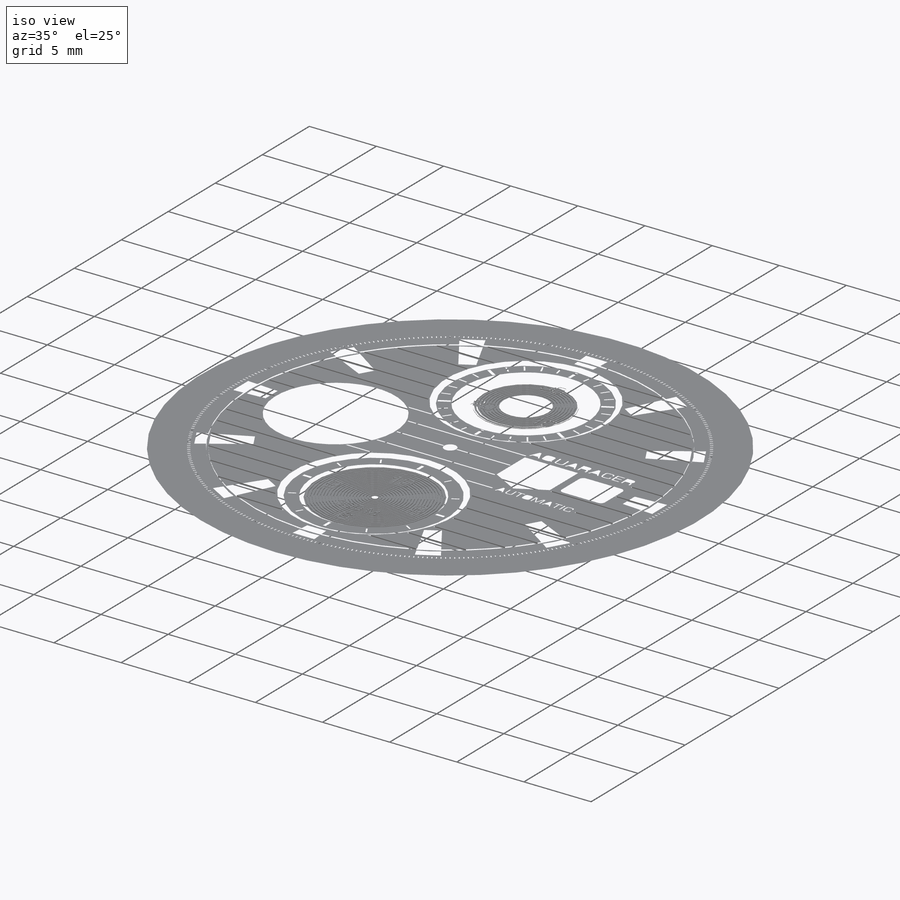
[diagram: iso view]
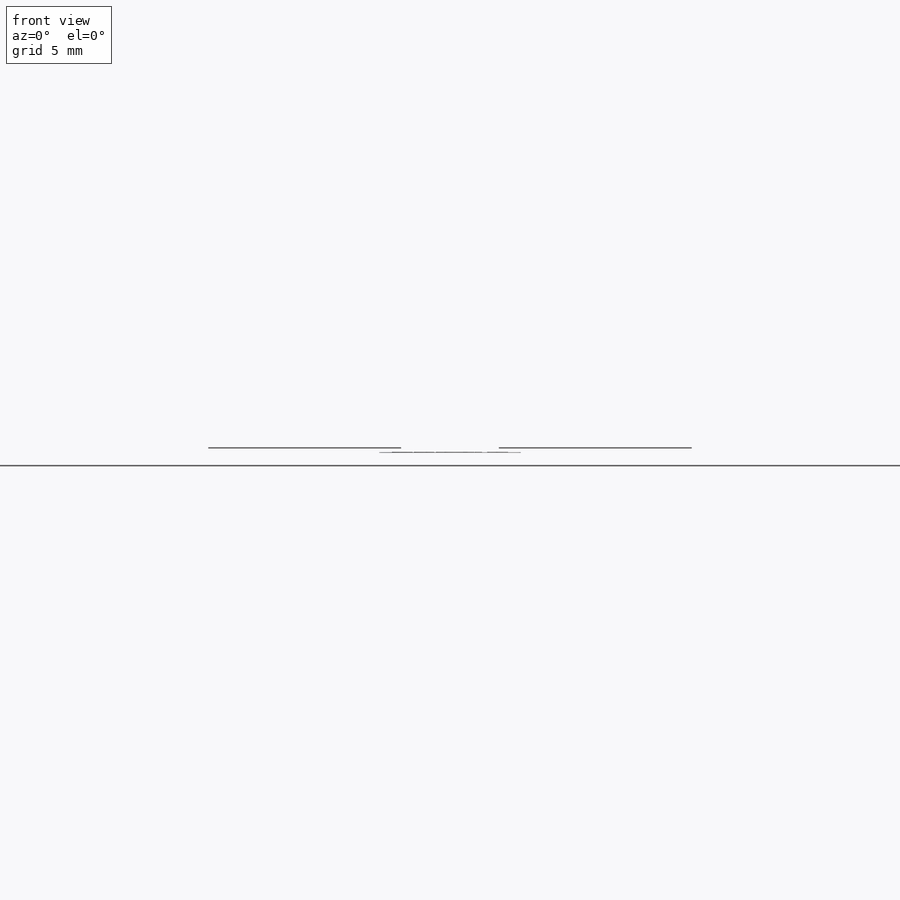
[diagram: front view]
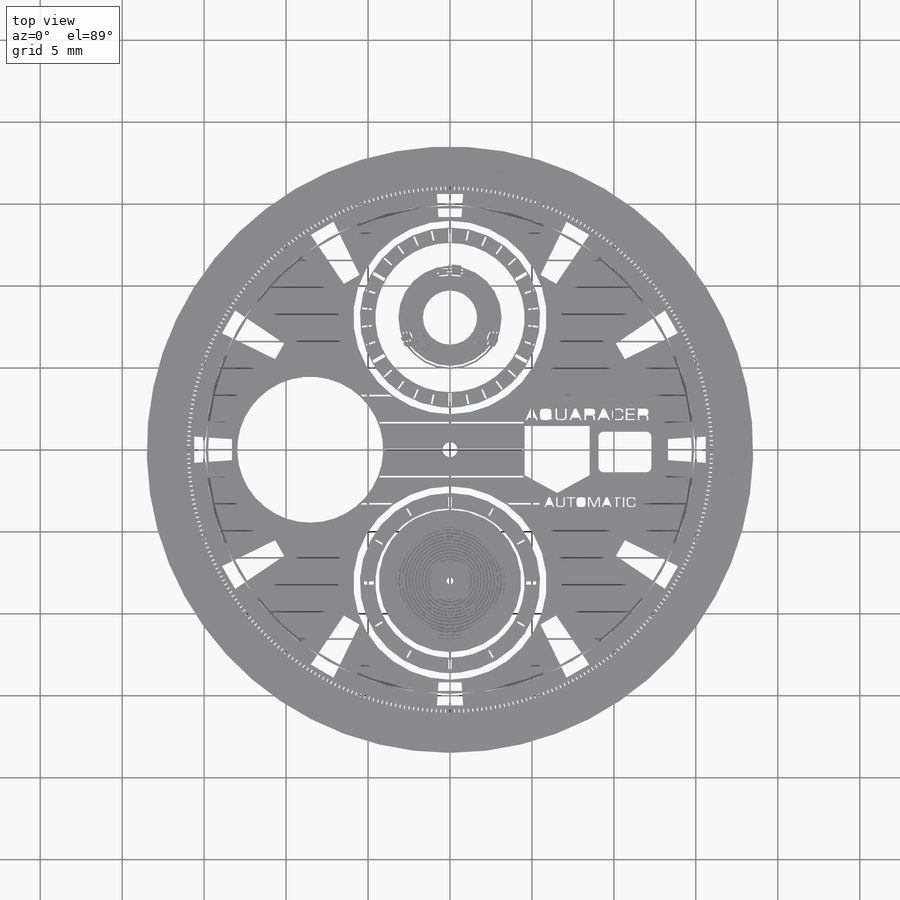
[diagram: top view]
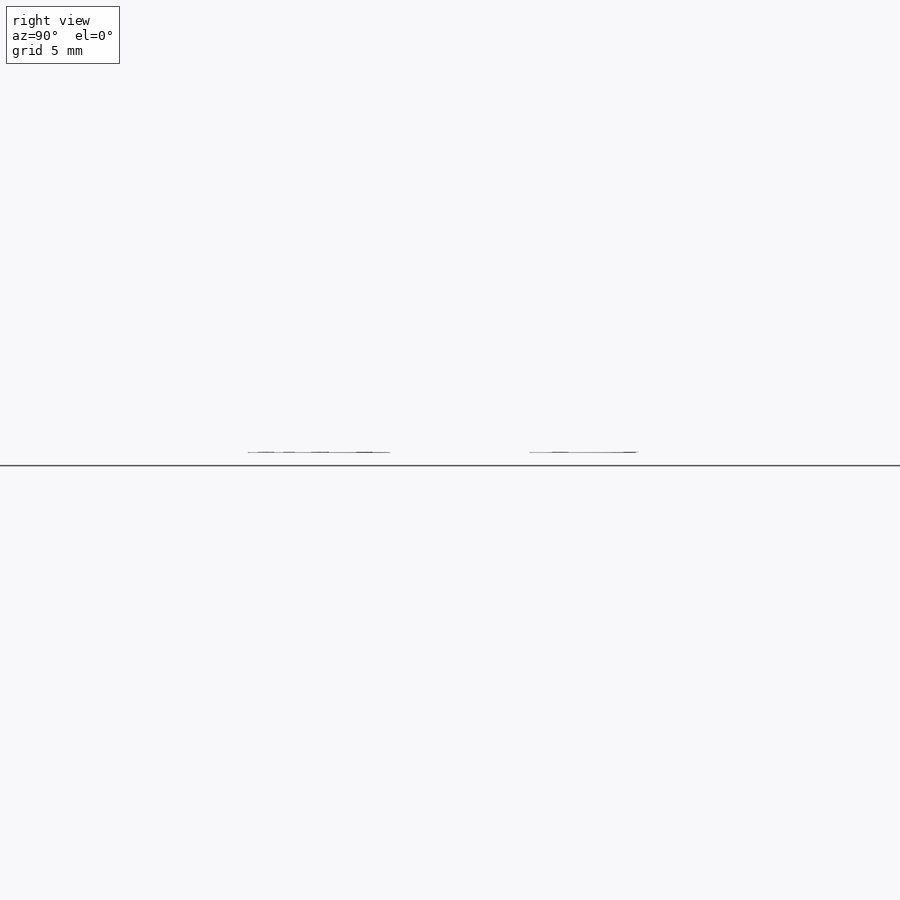
[diagram: right view]
SOLIDWORKS PART (.sldprt)
format: sldprt  version: not decoded by parser v0  size: 8,628,736 bytes
history: native  units: mm
features: sketch x60, extrude x28, cut_extrude x26, pattern_circular x6, fillet x3, chamfer x2, material x1 (+11 scaffold rows collapsed)
feature tree (137):
  scaffold x11  (default folders/planes/origin — collapsed)
  material  "Material <not specified>"
  sketch  "Sketch1"  dims[D1=32.0mm D2=0.15mm D4=11.0mm D5=11.8mm D6=8.7mm D7=11.0mm D8=11.8mm D9=2.0mm D10=1.0mm D11=28.5mm D12=1.0mm D13=1.0mm D14=0.4mm D3=3.8mm]
  sketch  "Sketch2"
  extrude  "Boss-Extrude1"  Depth=0.5mm
  sketch  "Sketch3"  dims[D1=0.0mm]
  sketch  "Sketch4"
  cut_extrude  "Cut-Extrude1"  Depth=0.5mm
  sketch  "Sketch5"  dims[D1=2.0mm]
  cut_extrude  "Cut-Extrude2"  Depth=0.25mm
  sketch  "Sketch6"  dims[D1=0.3mm D2=0.3mm D3=0.3mm D4=~8.065992mm]
  cut_extrude  "Cut-Extrude3"  Depth=10.25mm
  sketch  "Sketch7"
  extrude  "Boss-Extrude2"  Depth=0.1mm
  sketch  "Sketch8"  dims[c1.D1=0.1mm c1.D2=0.1mm c1.D3=0.1mm c1.D4=0.1mm c1.D5=0.1mm c2.D1=0.02mm c2.D2=0.02mm]
  cut_extrude  "Cut-Extrude4"  Depth=0.02mm
  sketch  "Sketch9"  dims[D1=0.3mm D2=1.0mm]
  extrude  "Boss-Extrude4"  Depth=0.5mm
  sketch  "Sketch10"  dims[D1=8.8mm]
  cut_extrude  "Cut-Extrude5"  Depth=0.15mm
  sketch  "Sketch11"  dims[D1=9.0mm D2=9.0mm D3=0.15mm]
  cut_extrude  "Cut-Extrude6"  Depth=0.15mm
  fillet  "Fillet3"  Radius=0.05mm
  sketch  "Sketch12"  dims[D1=30.2mm]
  cut_extrude  "Cut-Extrude7"  Depth=0.15mm
  chamfer  "Chamfer1"  Distance=0.15mm Angle=45deg
  sketch  "Sketch13"
  extrude  "Boss-Extrude5"  Depth=0.01mm
  sketch  "Sketch14"
  extrude  "Boss-Extrude6"  Depth=0.01mm
  sketch  "Sketch15"  dims[c1.D2=0.4mm c1.D3=0.4mm c1.D4=0.2mm c1.D5=0.2mm c1.D6=0.2mm c2.D6=~0.627253deg c3.D6=~16.867246mm c4.D6=90.0deg c4.D7=0.8mm c5.D7=90.0deg c6.D7=2.0mm c6.D1=12.0]
  sketch  "Sketch16"  dims[c1.D1=1.0mm c1.D7=0.8mm c1.D2=0.8mm c1.D3=0.8mm c1.D4=15.6mm c1.D5=~0.518012mm c2.D5=90.0deg c3.D5=1.1mm c3.D6=0.55mm c3.D7=1.2mm c4.D7=~0.152024deg c5.D7=~1.600006mm c6.D7=90.0deg c6.D8=12.0mm c6.D9=~0.479677mm c7.D9=~0.411081deg c8.D9=~0.438224mm c9.D9=90.0deg c10.D9=15.1mm c10.D10=0.45mm c10.D11=0.45mm c10.D12=12.5mm c10.D13=0.3mm c10.D14=0.3mm c10.D1=0.14mm c10.D3=0.13mm c10.D4=0.13mm c10.D5=0.13mm c10.D6=0.13mm]
  extrude  "Boss-Extrude7"  Depth=0.2mm
  sketch  "Sketch17"  dims[D1=0.05mm D2=0.0mm D3=0.0mm D4=0.05mm D5=0.0mm D6=0.05mm D7=0.0mm D8=0.05mm D9=0.0mm D10=0.05mm D11=0.0mm D12=0.05mm D13=0.0mm D14=0.05mm D15=0.0mm D16=0.05mm D17=0.0mm D18=0.05mm D19=0.05mm D20=0.0mm D21=0.0mm D22=0.05mm D23=0.05mm D24=0.0mm]
  sketch  "Sketch18"  dims[D1=0.05mm D2=0.05mm]
  cut_extrude  "Cut-Extrude8"  [1 undecoded]
  sketch  "Sketch19"  dims[D1=0.05mm D2=0.05mm]
  cut_extrude  "Cut-Extrude9"  [1 undecoded]
  sketch  "Sketch20"  dims[D1=0.05mm D2=0.05mm]
  cut_extrude  "Cut-Extrude10"  [1 undecoded]
  sketch  "Sketch21"  dims[D1=0.05mm D2=0.05mm]
  cut_extrude  "Cut-Extrude11"  Depth=3mm
  sketch  "Sketch22"  dims[D1=0.05mm D2=0.05mm]
  cut_extrude  "Cut-Extrude12"  [1 undecoded]
  sketch  "Sketch23"  dims[D1=0.05mm D2=0.05mm]
  cut_extrude  "Cut-Extrude13"  [1 undecoded]
  sketch  "Sketch24"  dims[D1=0.05mm D2=0.05mm]
  cut_extrude  "Cut-Extrude14"  [1 undecoded]
  sketch  "Sketch25"  dims[D1=0.05mm D2=0.05mm]
  cut_extrude  "Cut-Extrude15"  Depth=3mm
  sketch  "Sketch26"  dims[D1=0.05mm D2=0.05mm]
  cut_extrude  "Cut-Extrude16"  Depth=3mm
  sketch  "Sketch27"  dims[D1=0.05mm D2=0.05mm]
  cut_extrude  "Cut-Extrude17"  Depth=3mm
  sketch  "Sketch28"  dims[D1=0.05mm D2=0.05mm]
  cut_extrude  "Cut-Extrude18"  Depth=3mm
  sketch  "Sketch29"  dims[D1=0.05mm D2=0.05mm]
  cut_extrude  "Cut-Extrude19"  Depth=3mm
  sketch  "Sketch30"  dims[D1=0.0mm D2=0.0mm]
  sketch  "Sketch31"  dims[D1=0.0mm]
  sketch  "Sketch32"
  extrude  "Boss-Extrude10"  Depth=0.02mm
  sketch  "Sketch33"
  extrude  "Boss-Extrude11"  Depth=0.02mm
  sketch  "Sketch34"  dims[D1=0.15mm D2=0.075mm D3=0.5mm D4=12.0]
  extrude  "Boss-Extrude12"  Depth=0.02mm
  sketch  "Sketch35"  dims[D1=0.5mm D2=0.15mm D3=0.5mm D4=0.15mm]
  extrude  "Boss-Extrude13"  Depth=0.02mm
  sketch  "Sketch36"
  extrude  "Boss-Extrude14"  Depth=0.02mm
  sketch  "Sketch37"
  extrude  "Boss-Extrude15"  Depth=0.02mm
  sketch  "Sketch38"
  sketch  "Sketch39"
  extrude  "Boss-Extrude16"  Depth=0.02mm
  extrude  "Boss-Extrude17"  Depth=0.02mm
  sketch  "Sketch40"
  extrude  "Boss-Extrude18"  Depth=0.02mm
  chamfer  "Chamfer2"  Distance=0.02mm Angle=45deg
  sketch  "Sketch42"  dims[D1=32.0mm]
  extrude  "Boss-Extrude20"  [1 undecoded]
  sketch  "Sketch43"  dims[D1=13.3mm D2=13.3mm D3=14.2mm D4=14.2mm D5=0.35mm D6=0.3mm D7=0.3mm D8=0.35mm]
  extrude  "Boss-Extrude21"  Depth=0.4mm
  sketch  "Sketch44"  dims[D1=0.1mm D2=0.1mm]
  cut_extrude  "Cut-Extrude20"  Depth=5mm
  pattern_circular  "CirPattern1"  Count=12 Angle=30deg
  sketch  "Sketch45"  dims[D1=0.0mm]
  extrude  "Boss-Extrude22"  Depth=0.2mm
  sketch  "Sketch46"  dims[D5=0.1mm D6=0.05mm D1=0.0mm D2=0.1mm D3=0.1mm D4=0.1mm D7=2.0 D8=10.0 D9=10.0]
  cut_extrude  "Cut-Extrude21"  Depth=0.07mm
  sketch  "Sketch47"  dims[D1=0.0mm]
  extrude  "Boss-Extrude23"  [1 undecoded]
  sketch  "Sketch49"  dims[c1.D1=0.5mm c1.D2=0.05mm c1.D3=0.05mm c1.D4=0.05mm c1.D5=0.05mm c1.D6=0.05mm c1.D7=0.05mm c1.D8=0.05mm c1.D9=0.05mm c1.D10=0.05mm c1.D11=0.05mm c1.D12=0.05mm c1.D13=0.05mm c1.D14=0.05mm c1.D15=0.05mm c1.D16=0.05mm c1.D17=0.05mm c1.D18=0.05mm c1.D19=0.05mm c1.D20=0.05mm c1.D21=0.05mm c1.D22=0.05mm c1.D23=0.05mm c2.D2=0.1mm c2.D3=0.1mm c2.D4=0.1mm c2.D5=0.1mm c2.D6=0.1mm c2.D7=0.1mm c2.D8=0.1mm c2.D9=0.1mm c2.D10=0.1mm c2.D11=0.1mm c2.D12=0.1mm c2.D13=0.1mm c2.D14=0.1mm c2.D15=0.1mm c2.D16=0.1mm c2.D17=0.1mm c2.D18=0.1mm c2.D19=0.1mm c2.D20=0.1mm c2.D21=0.1mm c2.D22=0.1mm c2.D23=0.1mm c2.D24=0.1mm c2.D25=0.1mm c2.D26=0.1mm c2.D27=0.1mm c2.D28=0.1mm c2.D29=0.1mm c2.D30=0.1mm c2.D31=0.1mm c2.D32=0.1mm c2.D33=0.1mm c2.D34=0.1mm c2.D35=0.1mm c2.D36=0.1mm c2.D37=0.1mm c2.D38=0.1mm c2.D39=0.1mm c2.D40=0.1mm c2.D41=0.1mm c2.D42=0.1mm]
  cut_extrude  "Cut-Extrude23"  Depth=0.03mm
  sketch  "Sketch52"
  extrude  "Boss-Extrude24"  [1 undecoded]
  sketch  "Sketch53"  dims[D1=0.5mm]
  cut_extrude  "Cut-Extrude24"  Depth=0.03mm
  sketch  "Sketch54"  dims[D1=0.3mm]
  cut_extrude  "Cut-Extrude25"  Depth=30.03mm
  fillet  "Fillet6"  Radius=0.05mm
  sketch  "Sketch55"  dims[D1=0.6mm D2=5.4mm D3=0.05mm D4=0.1mm]
  extrude  "Boss-Extrude25"  Depth=0.01mm
  pattern_circular  "CirPattern2"  Count=30 Angle=360deg
  sketch  "Sketch56"  dims[D1=0.2mm D2=0.05mm D3=0.8mm]
  extrude  "Boss-Extrude26"  Depth=0.01mm
  pattern_circular  "CirPattern3"  Count=6 Angle=360deg
  sketch  "Sketch57"  dims[D1=0.05mm D2=5.25mm D3=0.05mm D4=0.5mm]
  extrude  "Boss-Extrude27"  Depth=0.01mm
  pattern_circular  "CirPattern4"  Count=12 Angle=30deg
  sketch  "Sketch58"  dims[D1=0.1mm D2=0.1mm D3=0.6mm D4=0.0mm D5=4.0]
  extrude  "Boss-Extrude28"  Depth=0.01mm
  sketch  "Sketch59"  dims[D1=0.0mm]
  cut_extrude  "Cut-Extrude26"  Depth=10.01mm
  sketch  "Sketch60"  dims[D1=0.8mm]
  extrude  "Boss-Extrude29"  [1 undecoded]
  fillet  "Fillet7"  Radius=0.05mm
  sketch  "Sketch62"  dims[D1=29.5mm]
  extrude  "Boss-Extrude31"  Depth=0.5mm
  sketch  "Sketch63"  dims[D1=29.8mm]
  cut_extrude  "Cut-Extrude27"  [1 undecoded]
  sketch  "Sketch61"  dims[D1=0.2mm D2=0.03mm D3=0.06mm D4=16.05mm]
  extrude  "Boss-Extrude30"  Depth=0.01mm
  pattern_circular  "CirPattern8"  Count=1 Angle=360deg
  sketch  "Sketch64"  dims[D1=0.38mm D2=0.2mm D3=0.05mm D4=0.1mm]
  extrude  "Boss-Extrude32"  Depth=0.01mm
  pattern_circular  "CirPattern9"  Count=60 Angle=360deg
decode coverage: 101 of 125 modeling features carry decoded parameters
note: ~ marks probable driven/reference dimensions
note: 11 parameter values undecoded
summary: no parameter record found for 11 features
note: suppression state not decoded; provenance and decode notes live in map.json
